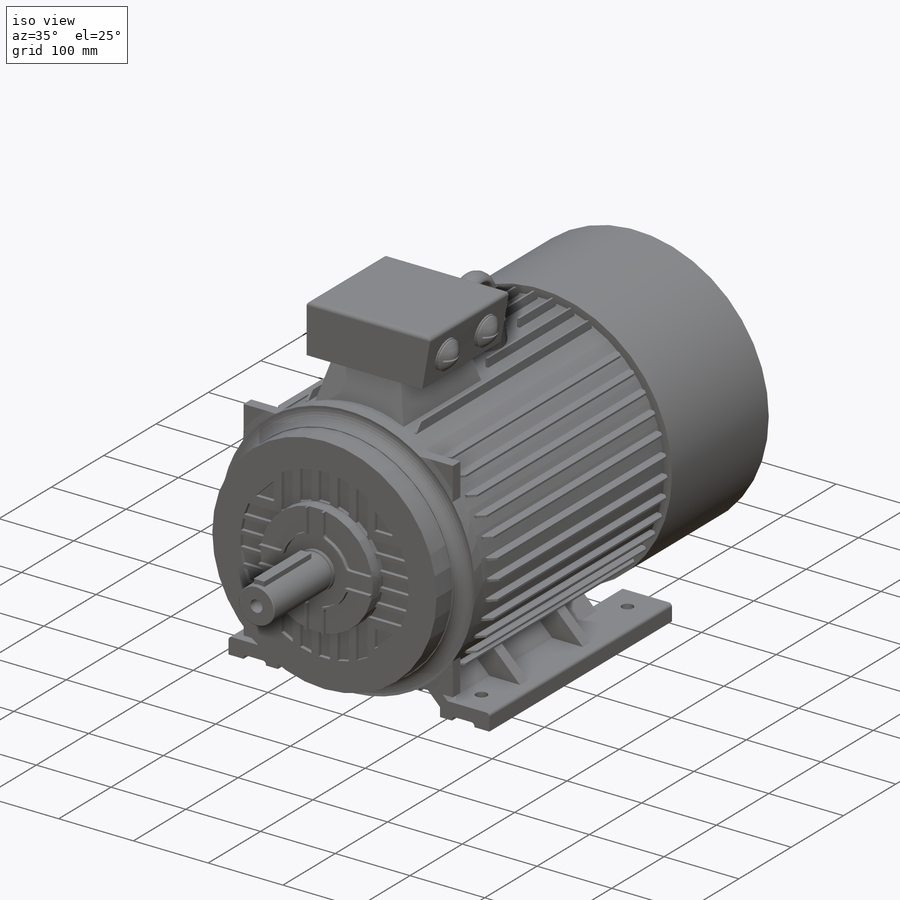
[diagram: iso view]
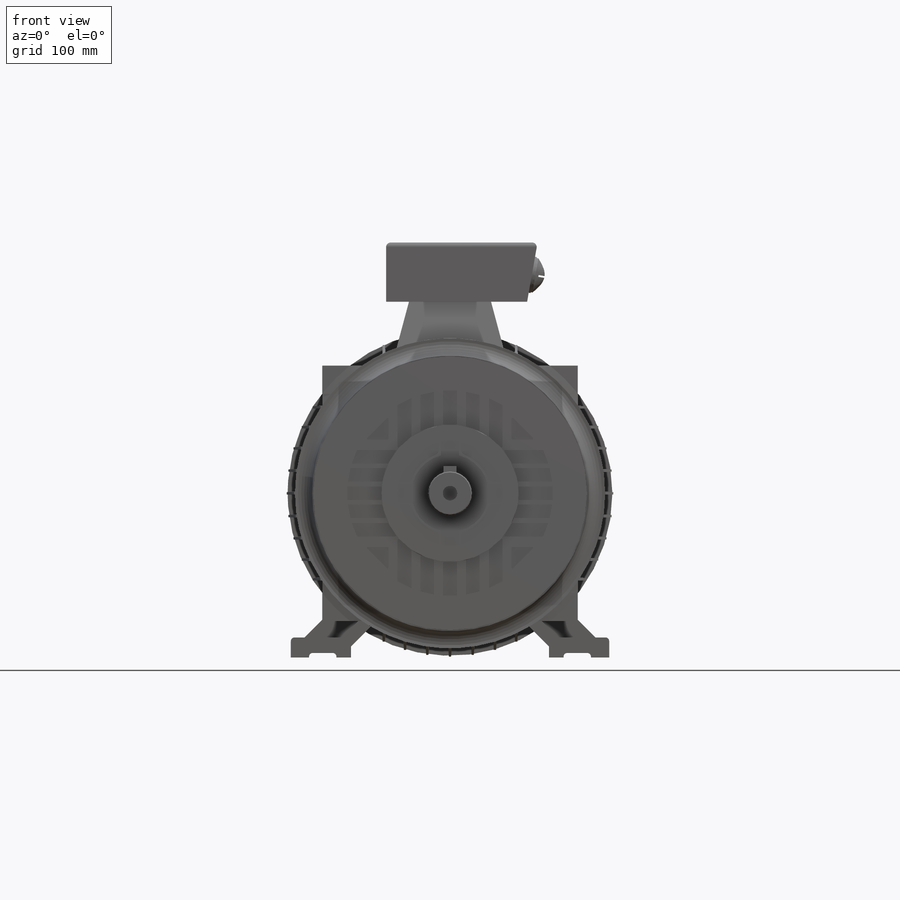
[diagram: front view]
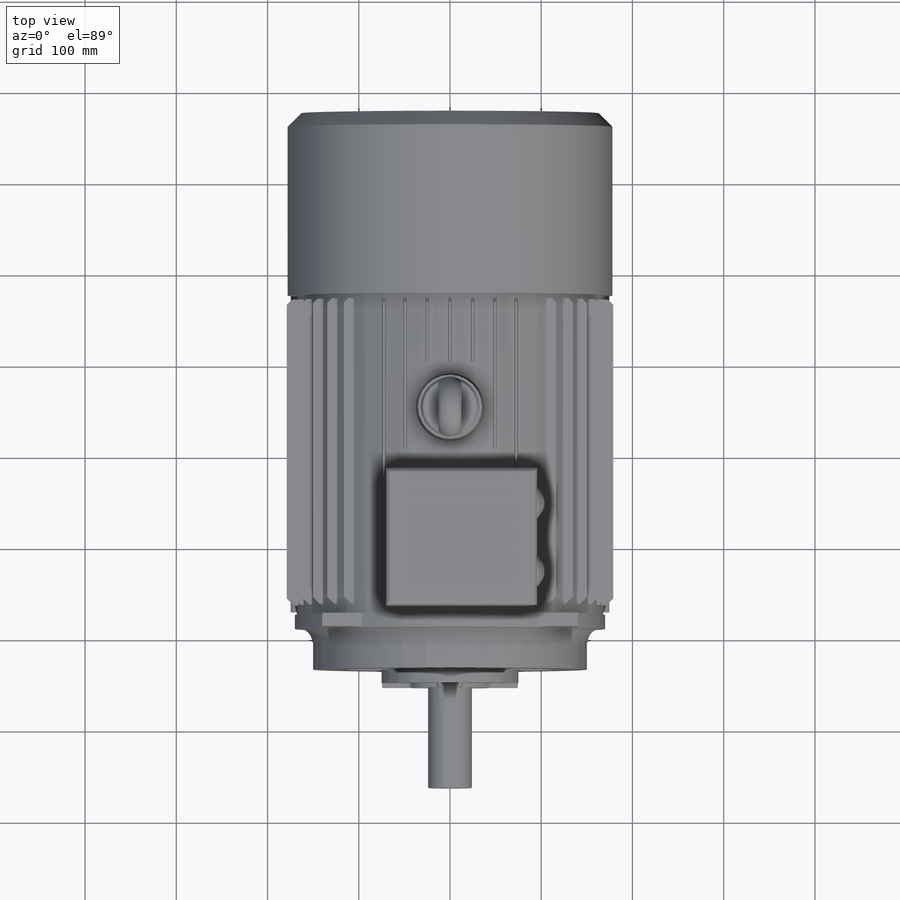
[diagram: top view]
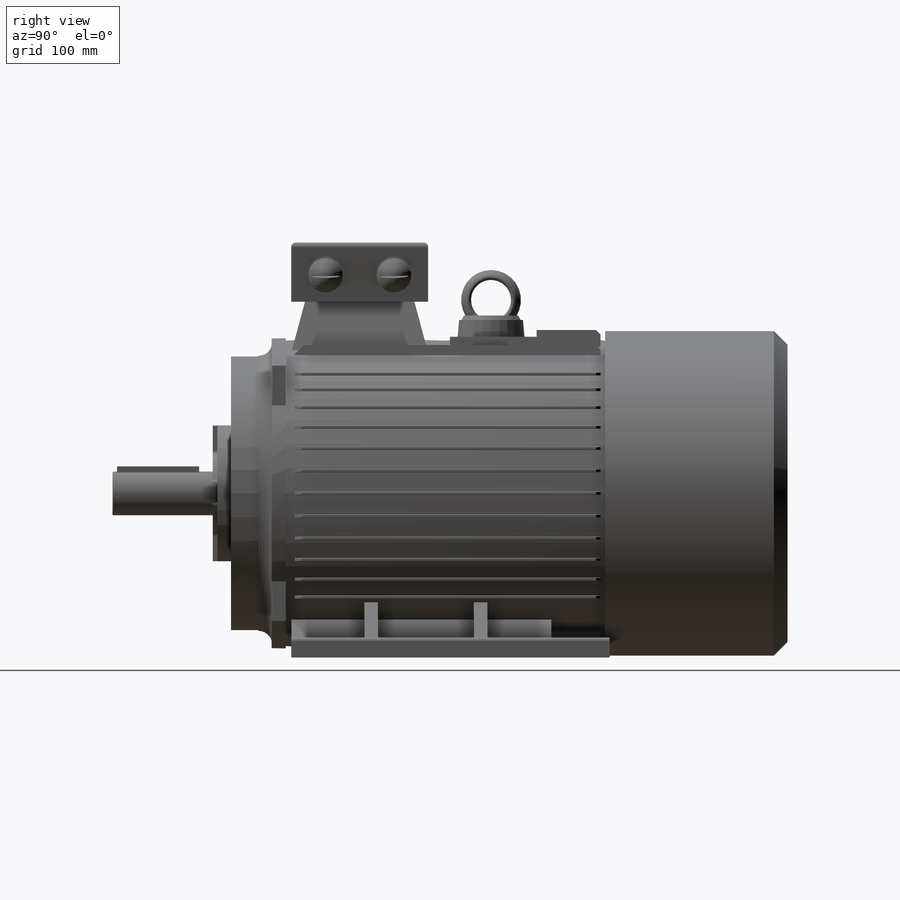
[diagram: right view]
SOLIDWORKS PART (.sldprt)
format: sldprt  version: not decoded by parser v0  size: 1,893,888 bytes
history: native  units: mm
features: sketch x29, extrude x20, chamfer x7, cut_extrude x7, plane x4, fillet x3, mirror x2, material x1, revolve x1, pattern_linear x1, dome x1, sweep x1 (+13 scaffold rows collapsed)
feature tree (90):
  scaffold x13  (default folders/planes/origin — collapsed)
  material  "Material <not specified>"
  sketch  "Sketch1"  dims[D1=336.0mm D2=356.0mm D3=10.0mm]
  extrude  "Boss-Extrude1"  Depth=350mm
  sketch  "Sketch2"  dims[c1.D1=10.0mm c1.D2=100.0mm c2.D1=2.5mm c2.D2=22.0mm]
  extrude  "Boss-Extrude2"  Depth=335mm
  chamfer  "Chamfer1"  Distance=8mm Angle=45deg
  chamfer  "Chamfer2"  Distance=5mm Angle=45deg
  mirror  "Mirror1"
  sketch  "Sketch3"  dims[c1.D1=50.0mm c1.D2=~65.597399mm c2.D1=~139.401973mm c2.D2=~41.845185mm c3.D1=22.0mm c3.D2=2.5mm]
  extrude  "Boss-Extrude3"  Depth=335mm
  chamfer  "Chamfer3"  Distance=10mm Angle=45deg
  chamfer  "Chamfer4"  Distance=5mm Angle=45deg
  extrude  "Draft2"  Depth=4
  mirror  "Mirror2"
  sketch  "Sketch4"  dims[D1=~49.755064mm]
  cut_extrude  "Cut-Extrude1"  Depth=180mm
  sketch  "Sketch6"  dims[c1.D2=30.0mm c1.D3=30.0mm c1.D1=30.0mm c2.D2=632.0mm c2.D3=36.2861mm c2.D1=170.0mm c3.D3=350.0mm c3.D4=30.0mm]
  revolve  "Revolve1"  Angle=360deg
  sketch  "Sketch7"  dims[D1=300.0mm]
  extrude  "Boss-Extrude4"  Depth=30mm
  sketch  "Sketch9"  dims[D1=356.0mm]
  extrude  "Boss-Extrude5"  Depth=200mm
  chamfer  "Chamfer5"  Distance=15mm Angle=45deg
  sketch  "Sketch8"  dims[D1=150.0mm]
  extrude  "Boss-Extrude6"  Depth=20mm
  sketch  "Sketch10"  dims[c1.D1=85.0mm c1.D2=85.0mm c1.D3=45.0mm c2.D2=~42.420741mm c2.D3=~27.624352mm c3.D2=20.0mm c3.D3=~36.69378mm c3.D4=~15.045957mm c4.D3=15.0mm c4.D4=45.0mm c4.D2=20.0mm c5.D3=~35.333474mm c5.D4=2.5mm c5.D5=2.5mm c5.D2=~37.767357mm c6.D4=~21.512611mm c6.D2=~33.932665mm c7.D4=~26.313759mm c7.D2=25.0mm c8.D4=20.0mm c8.D5=4.0]
  cut_extrude  "Cut-Extrude2"  Depth=5mm
  fillet  "Fillet1"  Radius=5mm
  sketch  "Sketch13"  dims[D1=50.0mm]
  extrude  "Boss-Extrude9"  Depth=5mm
  sketch  "Sketch11"  dims[D1=48.0mm]
  extrude  "Boss-Extrude7"  Depth=110mm
  sketch  "Sketch12"  dims[c1.D1=~12.962746mm c1.D2=~7.071479mm c2.D1=14.0mm c2.D2=42.5mm c2.D3=11.0mm]
  extrude  "Boss-Extrude8"  Depth=90mm
  chamfer  "Chamfer6"  Distance=1mm Angle=45deg
  sketch  "Sketch14"  dims[c1.D2=4.0mm c1.D3=4.0mm c1.D1=180.0mm c2.D2=10.0mm c2.D3=30.0mm c2.D4=30.0mm c2.D5=22.0mm]
  extrude  "Boss-Extrude10"  Depth=349mm
  sketch  "Sketch15"  dims[c1.D1=10.0mm c1.D2=~26.334045mm c2.D2=45.0deg c2.D3=10.0mm c2.D4=~24.789272mm c3.D4=45.0deg c3.D5=10.0mm]
  extrude  "Boss-Extrude11"  Depth=285mm
  sketch  "Sketch16"  dims[c1.D1=15.0mm c1.D2=~54.508909mm c2.D2=~44.729313deg c3.D2=~62.852195mm c4.D2=45.0deg c4.D3=~70.935887mm]
  extrude  "Boss-Extrude12"  Depth=15mm
  pattern_linear  "LPattern1"  Count1=2 Count2=1 Spacing1=120mm Spacing2=50mm
  sketch  "Sketch17"  dims[D1=279.0mm D2=35.0mm D3=35.0mm D4=279.0mm]
  cut_extrude  "Cut-Extrude3"  [1 undecoded]
  plane  "Plane1"  Offset=210mm
  sketch  "Sketch19"  dims[c1.D1=271.0mm c1.D2=140.0mm c1.D3=100.0mm c2.D2=90.0mm c2.D3=120.0mm]
  extrude  "Boss-Extrude13"  [1 undecoded]
  sketch  "Sketch20"  dims[c1.D1=188.0mm c1.D2=~31.262835mm c2.D1=96.0mm c2.D2=70.0mm c2.D3=~161.209224mm c2.D4=15.0mm c3.D3=15.0mm c3.D5=20.0mm]
  extrude  "Boss-Extrude14"  Depth=65mm
  chamfer  "Chamfer7"  Distance=65mm Angle=10deg
  fillet  "Fillet2"  Radius=5mm
  sketch  "Sketch22"  dims[D1=16.0mm]
  cut_extrude  "Cut-Extrude4"  Depth=36mm
  plane  "Plane2"
  sketch  "Sketch23"  dims[D1=75.0mm]
  extrude  "Boss-Extrude15"  Depth=2mm
  sketch  "Sketch24"  dims[D1=38.0mm]
  extrude  "Boss-Extrude16"  Depth=2mm
  dome  "Dome1"
  sketch  "Sketch25"  dims[c1.D1=5.0mm c1.D2=~114.691115mm c2.D1=2.0mm c2.D2=~121.921906mm c3.D1=2.0mm c3.D2=128.02mm c4.D1=2.0mm c4.D2=30.0mm c5.D1=~5.081535mm]
  cut_extrude  "Cut-Extrude5"  Depth=20mm
  sketch  "Sketch27"  dims[D1=~21.131325mm]
  cut_extrude  "Cut-Extrude6"  Depth=100mm
  plane  "Plane3"  Offset=190mm
  sketch  "Sketch28"  dims[D1=50.0mm]
  extrude  "Boss-Extrude17"  [1 undecoded]
  sketch  "3DSketch1"  dims[c1.D2=0.0mm c2.D2=70.0mm c2.D1=35.0mm c3.D1=35.0mm c3.D2=70.0mm c4.D1=70.0mm c4.D2=70.0mm c5.D1=70.0mm c5.D3=50.0mm c6.D1=50.0mm c6.D3=50.0mm c7.D1=50.0mm c8.D1=50.0mm c9.D1=~33.009803mm c10.D1=~0.336392mm c11.D1=~33.009803mm c11.D2=~60.795289mm c12.D2=~16.938045mm c13.D2=~40.829748mm c14.D2=~1.287828mm c14.D1=~12.00707mm c15.D2=30.0mm c16.D2=~0.146679mm c17.D2=~26.425414mm c18.D2=~3.674628mm c19.D2=~28.430329mm c20.D2=~0.524367mm c21.D2=22.0mm c21.D3=~26.094405mm c22.D3=~5.636935mm c23.D3=~19.078175mm c23.D1=~18.199667mm]
  sketch  "3DSketch2"  dims[c1.D1=10.0mm c2.D1=12.0mm c3.D1=12.0mm c3.D2=15.0mm c4.D1=15.0mm c5.D1=25.0mm c6.D1=0.0mm]
  sweep  "Sweep1"
  sketch  "Sketch29"  dims[D1=~0.206374mm]
  extrude  "Boss-Extrude18"  Depth=5mm
  sketch  "Sketch31"  dims[c1.D1=225.0mm c1.D3=1.0mm c1.D4=~150.500557mm c1.D7=1.0mm c1.D8=1.0mm c1.D10=1.0mm c1.D2=36.0mm c2.D3=~9.919807mm c2.D2=~37.160905mm c3.D3=~12.348184mm c3.D2=15.0mm c3.D4=~59.13881mm c3.D5=~13.545624mm c4.D4=~122.904128mm c4.D5=25.0mm c5.D4=25.0mm c5.D5=15.0mm c5.D6=25.0mm c5.D9=15.0mm c5.D10=~67.279174mm c6.D9=15.0mm c6.D10=49.16mm c7.D9=~6.782655mm c7.D10=~54.470031mm c8.D9=20.0mm c8.D10=15.0mm c8.D11=~55.746256mm c9.D10=15.0mm c9.D11=65.63mm c10.D10=15.0mm c10.D11=~61.28221mm c11.D10=15.0mm c11.D11=79.71mm c12.D10=~43.939456mm c12.D11=~30.294846mm]
  cut_extrude  "Cut-Extrude7"  Depth=5mm
  plane  "Plane4"
  sketch  "Sketch33"  dims[D1=280.0mm D2=280.0mm]
  extrude  "Boss-Extrude25"  Depth=1mm
  fillet  "Fillet3"  Radius=30mm
decode coverage: 65 of 72 modeling features carry decoded parameters
note: ~ marks probable driven/reference dimensions
note: 3 parameter values undecoded
summary: no parameter record found for 3 features
note: suppression state not decoded; provenance and decode notes live in map.json
